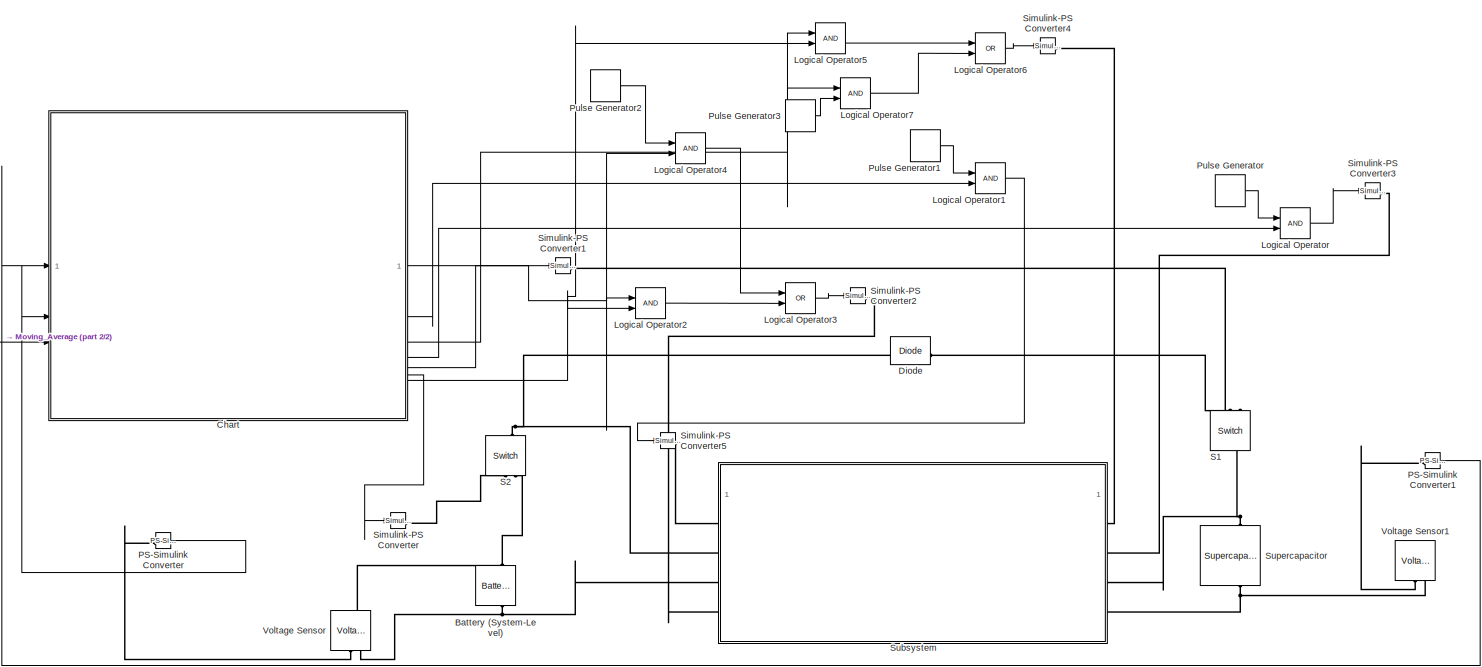
[diagram: root canvas - part 1/2, most of the canvas]
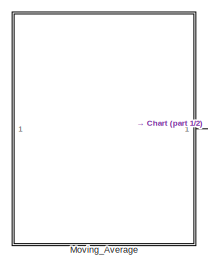
[diagram: root canvas - part 2/2, bottom left region]
MODEL slx_f51931a84d06
KIND model
CONFIG AbsTol = auto
CONFIG EnableMultiTasking = off
CONFIG FixedStep = 0.01
CONFIG MaxStep = auto
CONFIG MinStep = auto
CONFIG RelTol = 1e-3
CONFIG SampleTimeConstraint = Unconstrained
CONFIG SolverName = FixedStepAuto
CONFIG StartTime = 0.0
CONFIG StopTime = 0.2
BLOCK [Reference] Battery (System-Level)  REF=sdl_lib/Sources/Battery
(System-Level)
  NameLocation = right
  SourceBlock = sdl_lib/Sources/Battery\n(System-Level)
  SourceType = Battery\n(System-Level)
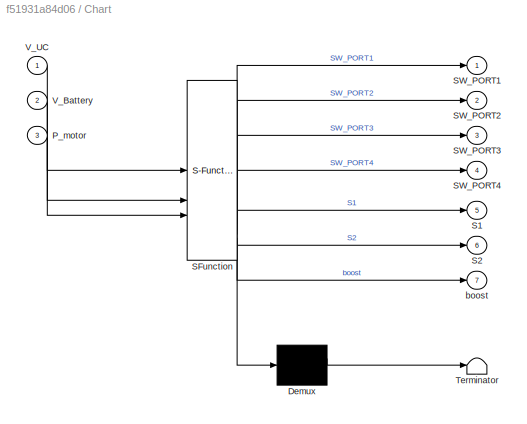
BLOCK [SubSystem] Chart
  ErrorFcn = Stateflow.Translate.translate
  PermitHierarchicalResolution = ExplicitOnly
  SFBlockType = Chart
  TreatAsAtomicUnit = on
BLOCK [Demux] Chart/ Demux 
  Outputs = 1
BLOCK [S-Function] Chart/ SFunction 
  EnableBusSupport = on
  FunctionName = sf_sfun
  PortCounts = [3 8]
  SFcnIsStateOwnerBlock = off
  SFunctionDeploymentMode = off
  Tag = Stateflow S-Function 3
BLOCK [Terminator] Chart/ Terminator 
BLOCK [Inport] Chart/P_motor
  Port = 3
BLOCK [Outport] Chart/S1
  Port = 5
BLOCK [Outport] Chart/S2
  Port = 6
BLOCK [Outport] Chart/SW_PORT1
BLOCK [Outport] Chart/SW_PORT2
  Port = 2
BLOCK [Outport] Chart/SW_PORT3
  Port = 3
BLOCK [Outport] Chart/SW_PORT4
  Port = 4
BLOCK [Inport] Chart/V_Battery
  Port = 2
BLOCK [Inport] Chart/V_UC
BLOCK [Outport] Chart/boost
  Port = 7
BLOCK [Reference] Diode  REF=ee_lib/Semiconductors &
Converters/Diode
  SourceBlock = ee_lib/Semiconductors &\nConverters/Diode
  SourceType = Diode
BLOCK [Logic] Logical Operator
  AllPortsSameDT = off
  OutDataTypeStr = boolean
BLOCK [Logic] Logical Operator1
  AllPortsSameDT = off
  OutDataTypeStr = boolean
BLOCK [Logic] Logical Operator2
  AllPortsSameDT = off
  OutDataTypeStr = boolean
BLOCK [Logic] Logical Operator3
  AllPortsSameDT = off
  Operator = OR
  OutDataTypeStr = boolean
BLOCK [Logic] Logical Operator4
  AllPortsSameDT = off
  OutDataTypeStr = boolean
BLOCK [Logic] Logical Operator5
  AllPortsSameDT = off
  OutDataTypeStr = boolean
BLOCK [Logic] Logical Operator6
  AllPortsSameDT = off
  Operator = OR
  OutDataTypeStr = boolean
BLOCK [Logic] Logical Operator7
  AllPortsSameDT = off
  OutDataTypeStr = boolean
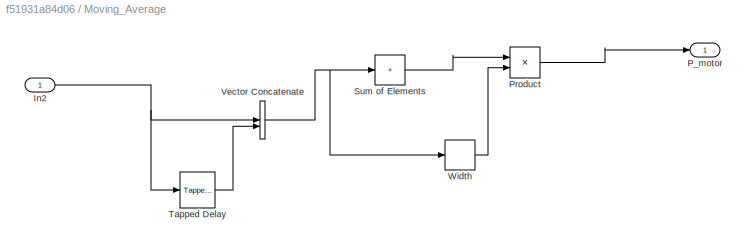
BLOCK [SubSystem] Moving_Average
BLOCK [Inport] Moving_Average/In2
BLOCK [Outport] Moving_Average/P_motor
BLOCK [Product] Moving_Average/Product
  Inputs = */
BLOCK [Sum] Moving_Average/Sum of Elements
  IconShape = rectangular
  Inputs = +
BLOCK [Reference] Moving_Average/Tapped Delay  REF=simulink/Discrete/Tapped Delay
  SourceBlock = simulink/Discrete/Tapped Delay
  SourceType = Tapped Delay Line
BLOCK [Concatenate] Moving_Average/Vector Concatenate
BLOCK [Width] Moving_Average/Width
  AlwaysUseConstantSampleTime = off
  DataType = uint8
BLOCK [Reference] PS-Simulink Converter  REF=nesl_utility/PS-Simulink
Converter
  SourceBlock = nesl_utility/PS-Simulink\nConverter
  SourceType = PS-Simulink\nConverter
BLOCK [Reference] PS-Simulink Converter1  REF=nesl_utility/PS-Simulink
Converter
  SourceBlock = nesl_utility/PS-Simulink\nConverter
  SourceType = PS-Simulink\nConverter
BLOCK [DiscretePulseGenerator] Pulse Generator
  Period = 1e-4
  PulseType = Time based
  PulseWidth = 5
BLOCK [DiscretePulseGenerator] Pulse Generator1
  Period = 1e-5
  PulseType = Time based
  PulseWidth = 5
BLOCK [DiscretePulseGenerator] Pulse Generator2
  Period = 1e-4
  PulseType = Time based
  PulseWidth = 5
BLOCK [DiscretePulseGenerator] Pulse Generator3
  Period = 1e-5
  PulseType = Time based
  PulseWidth = 5
BLOCK [Reference] S1  REF=fl_lib/Electrical/Electrical Elements/Switch
  NameLocation = left
  SourceBlock = fl_lib/Electrical/Electrical Elements/Switch
  SourceType = Switch
BLOCK [Reference] S2  REF=fl_lib/Electrical/Electrical Elements/Switch
  NameLocation = right
  SourceBlock = fl_lib/Electrical/Electrical Elements/Switch
  SourceType = Switch
BLOCK [Reference] Simulink-PS Converter  REF=nesl_utility/Simulink-PS
Converter
  SourceBlock = nesl_utility/Simulink-PS\nConverter
  SourceType = Simulink-PS\nConverter
BLOCK [Reference] Simulink-PS Converter1  REF=nesl_utility/Simulink-PS
Converter
  SourceBlock = nesl_utility/Simulink-PS\nConverter
  SourceType = Simulink-PS\nConverter
BLOCK [Reference] Simulink-PS Converter2  REF=nesl_utility/Simulink-PS
Converter
  SourceBlock = nesl_utility/Simulink-PS\nConverter
  SourceType = Simulink-PS\nConverter
BLOCK [Reference] Simulink-PS Converter3  REF=nesl_utility/Simulink-PS
Converter
  SourceBlock = nesl_utility/Simulink-PS\nConverter
  SourceType = Simulink-PS\nConverter
BLOCK [Reference] Simulink-PS Converter4  REF=nesl_utility/Simulink-PS
Converter
  SourceBlock = nesl_utility/Simulink-PS\nConverter
  SourceType = Simulink-PS\nConverter
BLOCK [Reference] Simulink-PS Converter5  REF=nesl_utility/Simulink-PS
Converter
  SourceBlock = nesl_utility/Simulink-PS\nConverter
  SourceType = Simulink-PS\nConverter
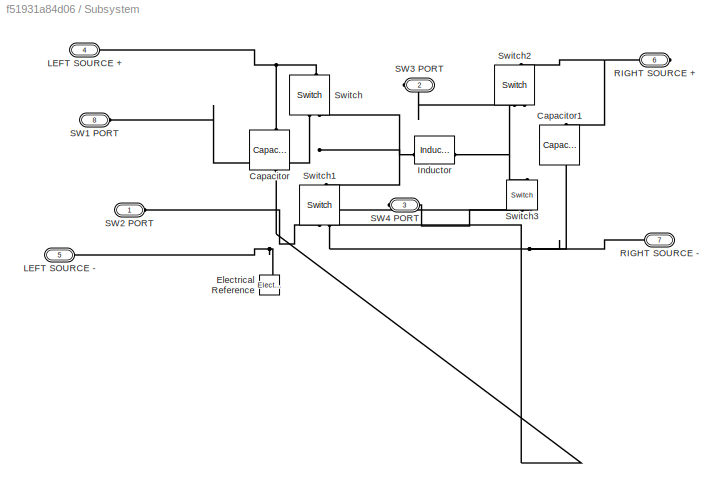
BLOCK [SubSystem] Subsystem
BLOCK [Reference] Subsystem/Capacitor  REF=fl_lib/Electrical/Electrical Elements/Capacitor
  NameLocation = left
  SourceBlock = fl_lib/Electrical/Electrical Elements/Capacitor
  SourceType = Capacitor
BLOCK [Reference] Subsystem/Capacitor1  REF=fl_lib/Electrical/Electrical Elements/Capacitor
  NameLocation = left
  SourceBlock = fl_lib/Electrical/Electrical Elements/Capacitor
  SourceType = Capacitor
BLOCK [Reference] Subsystem/Electrical Reference  REF=fl_lib/Electrical/Electrical Elements/Electrical Reference
  LibrarySourceBlock = ee_lib/Connectors &\nReferences/Electrical Reference
  NameLocation = right
  SourceBlock = fl_lib/Electrical/Electrical Elements/Electrical Reference
  SourceType = Electrical Reference
BLOCK [Reference] Subsystem/Inductor  REF=fl_lib/Electrical/Electrical Elements/Inductor
  SourceBlock = fl_lib/Electrical/Electrical Elements/Inductor
  SourceType = Inductor
BLOCK [PMIOPort] Subsystem/LEFT SOURCE +
  Port = 4
  Side = Left
BLOCK [PMIOPort] Subsystem/LEFT SOURCE -
  Port = 5
  Side = Left
BLOCK [PMIOPort] Subsystem/RIGHT SOURCE +
  NameLocation = top
  Port = 6
  Side = Right
BLOCK [PMIOPort] Subsystem/RIGHT SOURCE -
  NameLocation = top
  Port = 7
  Side = Right
BLOCK [PMIOPort] Subsystem/SW1 PORT
  Port = 8
  Side = Left
BLOCK [PMIOPort] Subsystem/SW2 PORT
  Side = Left
BLOCK [PMIOPort] Subsystem/SW3 PORT
  Port = 2
  Side = Right
BLOCK [PMIOPort] Subsystem/SW4 PORT
  Port = 3
  Side = Right
BLOCK [Reference] Subsystem/Switch  REF=fl_lib/Electrical/Electrical Elements/Switch
  NameLocation = right
  SourceBlock = fl_lib/Electrical/Electrical Elements/Switch
  SourceType = Switch
BLOCK [Reference] Subsystem/Switch1  REF=fl_lib/Electrical/Electrical Elements/Switch
  NameLocation = right
  SourceBlock = fl_lib/Electrical/Electrical Elements/Switch
  SourceType = Switch
BLOCK [Reference] Subsystem/Switch2  REF=fl_lib/Electrical/Electrical Elements/Switch
  NameLocation = right
  SourceBlock = fl_lib/Electrical/Electrical Elements/Switch
  SourceType = Switch
BLOCK [Reference] Subsystem/Switch3  REF=fl_lib/Electrical/Electrical Elements/Switch
  NameLocation = right
  SourceBlock = fl_lib/Electrical/Electrical Elements/Switch
  SourceType = Switch
BLOCK [Reference] Supercapacitor  REF=ee_lib/Passive/Supercapacitor
  NameLocation = right
  SourceBlock = ee_lib/Passive/Supercapacitor
  SourceType = Supercapacitor
BLOCK [Reference] Voltage Sensor  REF=fl_lib/Electrical/Electrical Sensors/Voltage Sensor
  NameLocation = right
  SourceBlock = fl_lib/Electrical/Electrical Sensors/Voltage Sensor
  SourceType = Voltage Sensor
BLOCK [Reference] Voltage Sensor1  REF=fl_lib/Electrical/Electrical Sensors/Voltage Sensor
  NameLocation = right
  SourceBlock = fl_lib/Electrical/Electrical Sensors/Voltage Sensor
  SourceType = Voltage Sensor
NET Chart:1 -> Logical Operator2:1, Logical Operator4:2
LINE Chart:2 -> Logical Operator1:2
NET Chart:3 -> Logical Operator5:1, Logical Operator7:1
LINE Chart:4 -> Logical Operator:2
LINE Chart:5 -> Simulink-PS Converter1:1
LINE Chart:6 -> Simulink-PS Converter:1
NET Chart:7 -> Logical Operator2:2, Logical Operator5:2
LINE Logical Operator1:1 -> Simulink-PS Converter5:1
LINE Logical Operator2:1 -> Logical Operator3:2
LINE Logical Operator3:1 -> Simulink-PS Converter2:1
LINE Logical Operator4:1 -> Logical Operator3:1
LINE Logical Operator5:1 -> Logical Operator6:1
LINE Logical Operator6:1 -> Simulink-PS Converter4:1
LINE Logical Operator7:1 -> Logical Operator6:2
LINE Logical Operator:1 -> Simulink-PS Converter3:1
NET Moving_Average/In2:1 -> Moving_Average/Tapped Delay:1, Moving_Average/Vector Concatenate:1
LINE Moving_Average/Product:1 -> Moving_Average/P_motor:1
LINE Moving_Average/Sum of Elements:1 -> Moving_Average/Product:1
LINE Moving_Average/Tapped Delay:1 -> Moving_Average/Vector Concatenate:2
NET Moving_Average/Vector Concatenate:1 -> Moving_Average/Sum of Elements:1, Moving_Average/Width:1
LINE Moving_Average/Width:1 -> Moving_Average/Product:2
LINE Moving_Average:1 -> Chart:3
LINE PS-Simulink Converter1:1 -> Chart:1
LINE PS-Simulink Converter:1 -> Chart:2
LINE Pulse Generator1:1 -> Logical Operator1:1
LINE Pulse Generator2:1 -> Logical Operator4:1
LINE Pulse Generator3:1 -> Logical Operator7:2
LINE Pulse Generator:1 -> Logical Operator:1
PNET net1: Battery (System-Level):LConn1 -- S2:RConn2 -- Voltage Sensor:LConn1
PNET net2: Battery (System-Level):RConn1 -- Subsystem:LConn3 -- Voltage Sensor:RConn2
PNET net3: Diode:LConn1 -- S2:LConn1 -- Subsystem:LConn2
PLINE Diode:RConn1 -- S1:RConn2
PLINE PS-Simulink Converter1:LConn1 -- Voltage Sensor1:RConn1
PLINE PS-Simulink Converter:LConn1 -- Voltage Sensor:RConn1
PNET net4: S1:LConn1 -- Subsystem:RConn3 -- Supercapacitor:LConn1
PLINE S1:RConn1 -- Simulink-PS Converter1:RConn1
PLINE S2:RConn1 -- Simulink-PS Converter:RConn1
PLINE Simulink-PS Converter2:RConn1 -- Subsystem:LConn4
PLINE Simulink-PS Converter3:RConn1 -- Subsystem:RConn2
PLINE Simulink-PS Converter4:RConn1 -- Subsystem:RConn1
PLINE Simulink-PS Converter5:RConn1 -- Subsystem:LConn1
PNET net5: Subsystem/Capacitor1:LConn1 -- Subsystem/RIGHT SOURCE +:RConn1 -- Subsystem/Switch2:LConn1
PNET net6: Subsystem/Capacitor1:RConn1 -- Subsystem/Capacitor:RConn1 -- Subsystem/Electrical Reference:LConn1 -- Subsystem/LEFT SOURCE -:RConn1 -- Subsystem/RIGHT SOURCE -:RConn1 -- Subsystem/Switch1:RConn2 -- Subsystem/Switch3:RConn2
PNET net7: Subsystem/Capacitor:LConn1 -- Subsystem/LEFT SOURCE +:RConn1 -- Subsystem/Switch:LConn1
PNET net8: Subsystem/Inductor:LConn1 -- Subsystem/Switch1:LConn1 -- Subsystem/Switch:RConn2
PNET net9: Subsystem/Inductor:RConn1 -- Subsystem/Switch2:RConn2 -- Subsystem/Switch3:LConn1
PLINE Subsystem/SW1 PORT:RConn1 -- Subsystem/Switch:RConn1
PLINE Subsystem/SW2 PORT:RConn1 -- Subsystem/Switch1:RConn1
PLINE Subsystem/SW3 PORT:RConn1 -- Subsystem/Switch2:RConn1
PLINE Subsystem/SW4 PORT:RConn1 -- Subsystem/Switch3:RConn1
PNET net10: Subsystem:RConn4 -- Supercapacitor:RConn1 -- Voltage Sensor1:RConn2
note: NET lines group one-source signal fan-out (src -> all destinations, sorted); 1:1 wires keep LINE; PNET lines group multi-terminal physical nets as a canonical sorted terminal list (undirected conserving connections); 2-terminal nets keep the pairwise PLINE form
CHART Chart states=15 transitions=23
  STATE_LABEL 'Rule_Based'
  STATE_LABEL 'Start'
  STATE_LABEL 'P_motor'
  STATE_LABEL 'V_UC_V_UP_UC'
  STATE_LABEL 'PURE_UC_RECOVER_MODE\nS1=1;\nS2=0;\nboost=0;\nSW_PORT1=0;\nSW_PORT2=0;\nSW_PORT3=0;\nSW_PORT4=0;\n'
  STATE_LABEL 'Hybrid_UC_BATTERY_RECOVER_MODE\nS1=1;\nS2=1;\nboost=0;\nSW_PORT1=0;\nSW_PORT2=0;\nSW_PORT3=1;\nSW_PORT4=0;\n'
  STATE_LABEL 'P_motor_and_P_Low_battery\n'
  STATE_LABEL 'V_UC_V_Target_low_UC'
  STATE_LABEL 'LOW_POWER_DRIVING_AND_CHARGING_MODE\nS1=0;\nS2=1;\nboost=1;\nSW_PORT1=1;\nSW_PORT2=0;\nSW_PORT3=0;\nSW_PORT4=1;\n'
  STATE_LABEL 'V_UC_V_UP_UC1'
  STATE_LABEL 'PURE_BATTERY_DRIVING_MODE\nS1=0;\nS2=1;\nboost=0;\nSW_PORT1=0;\nSW_PORT2=0;\nSW_PORT3=0;\nSW_PORT4=0;'
  STATE_LABEL 'V_UC_and_V_target_low_UC\n'
  STATE_LABEL 'PURE_UC_DRIVING_MODE\nS2=0;\nS1=1;\nboost=0;\nSW_PORT1=0;\nSW_PORT2=0;\nSW_PORT3=0;\nSW_PORT4=0;'
  STATE_LABEL 'HYBRID_BATTERY_UC_DRIVING_MODE\nS1=1;\nS2=1;\nboost=1;\nSW_PORT1=1;\nSW_PORT2=0;\nSW_PORT3=0;\nSW_PORT4=0;'
  STATE_LABEL 'V_UC_and_V_UP_UC'
CHART  states=0 transitions=0
